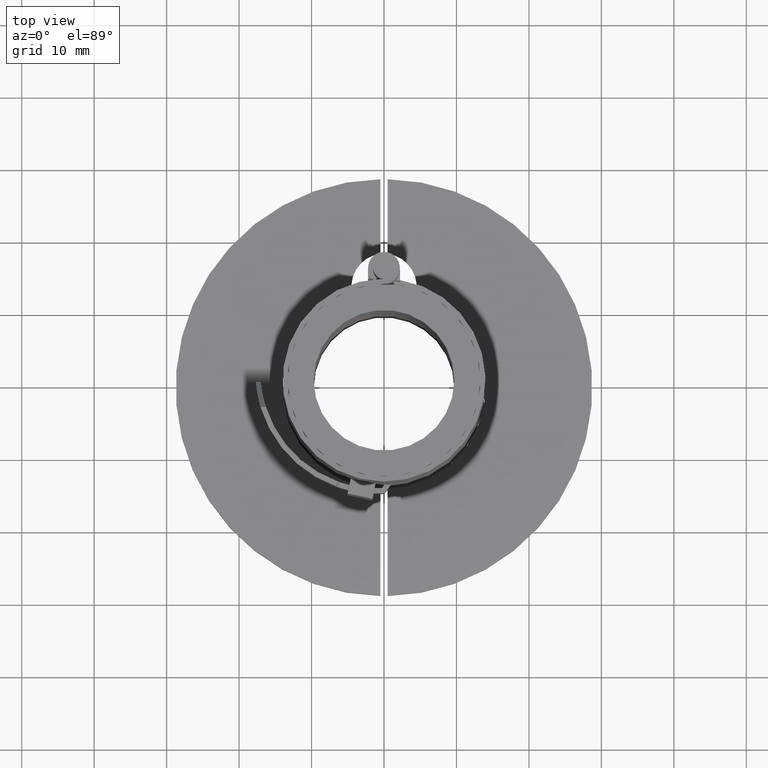
[diagram: clean part render]
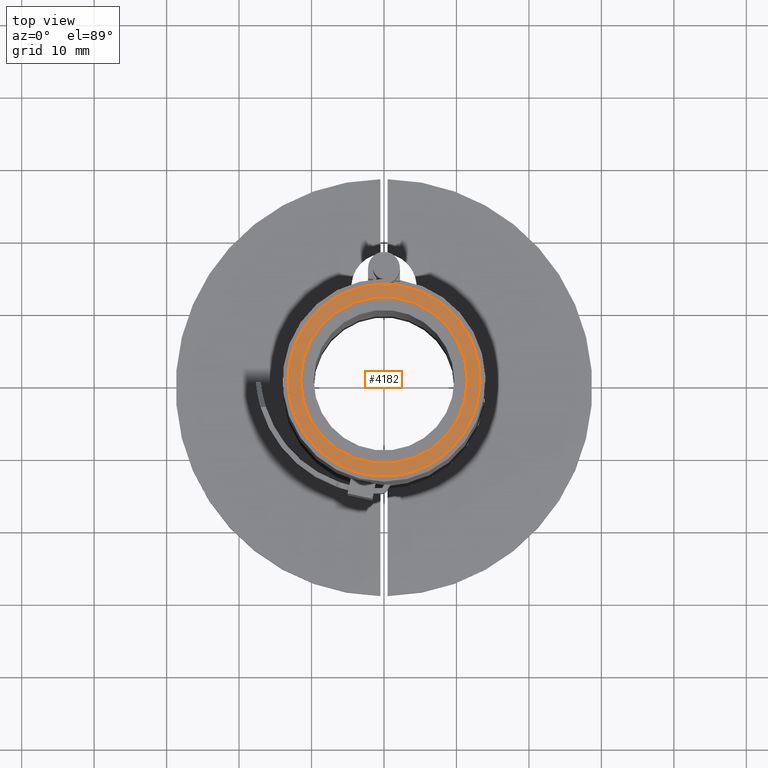
[diagram: same view with one face highlighted and labeled with its STEP entity id]
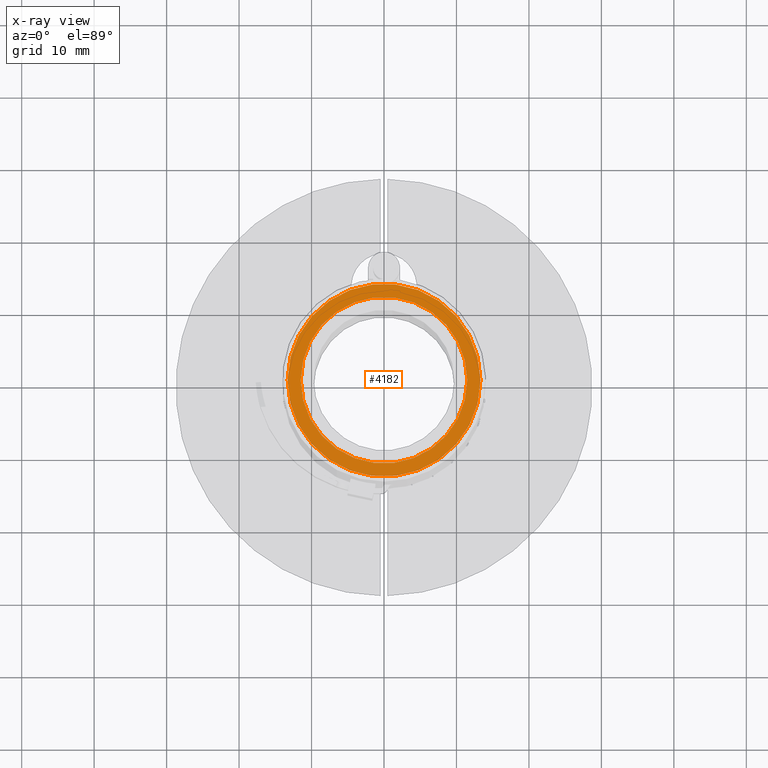
[diagram: x-ray of the same camera — body ghosted, the highlighted face saturated]
A machine part, top view. The second image highlights one B-rep face of the part: STEP entity #4182.
The next image is the same camera in x-ray: the body ghosted, the highlighted face saturated — about 0% of this face is hidden behind the body in this view.
In plain terms, the highlighted planar face has unit normal (0, 0, -1).
Its self-contained STEP definition (entity closure, byte-faithful):
#4108=CARTESIAN_POINT('',(11.500000000000002,1.408344E-015,60.0));
#4109=VERTEX_POINT('',#4108);
#4110=CARTESIAN_POINT('',(0.0,0.0,60.0));
#4111=DIRECTION('',(0.0,0.0,-1.0));
#4112=DIRECTION('',(-1.0,0.0,0.0));
#4113=AXIS2_PLACEMENT_3D('',#4110,#4111,#4112);
#4114=CIRCLE('',#4113,11.500000000000002);
#4115=EDGE_CURVE('',#4109,#4109,#4114,.T.);
#4148=CARTESIAN_POINT('',(13.300000000000001,1.628780E-015,60.0));
#4149=VERTEX_POINT('',#4148);
#4150=CARTESIAN_POINT('',(0.0,0.0,60.0));
#4151=DIRECTION('',(0.0,0.0,-1.0));
#4152=DIRECTION('',(-1.0,0.0,0.0));
#4153=AXIS2_PLACEMENT_3D('',#4150,#4151,#4152);
#4154=CIRCLE('',#4153,13.300000000000001);
#4155=EDGE_CURVE('',#4149,#4149,#4154,.T.);
#4171=CARTESIAN_POINT('',(0.0,0.0,60.0));
#4172=DIRECTION('',(0.0,0.0,-1.0));
#4173=DIRECTION('',(-1.0,0.0,0.0));
#4174=AXIS2_PLACEMENT_3D('',#4171,#4172,#4173);
#4175=PLANE('',#4174);
#4176=ORIENTED_EDGE('',*,*,#4155,.F.);
#4177=EDGE_LOOP('',(#4176));
#4178=FACE_OUTER_BOUND('',#4177,.T.);
#4179=ORIENTED_EDGE('',*,*,#4115,.T.);
#4180=EDGE_LOOP('',(#4179));
#4181=FACE_BOUND('',#4180,.T.);
#4182=ADVANCED_FACE('',(#4178,#4181),#4175,.F.);